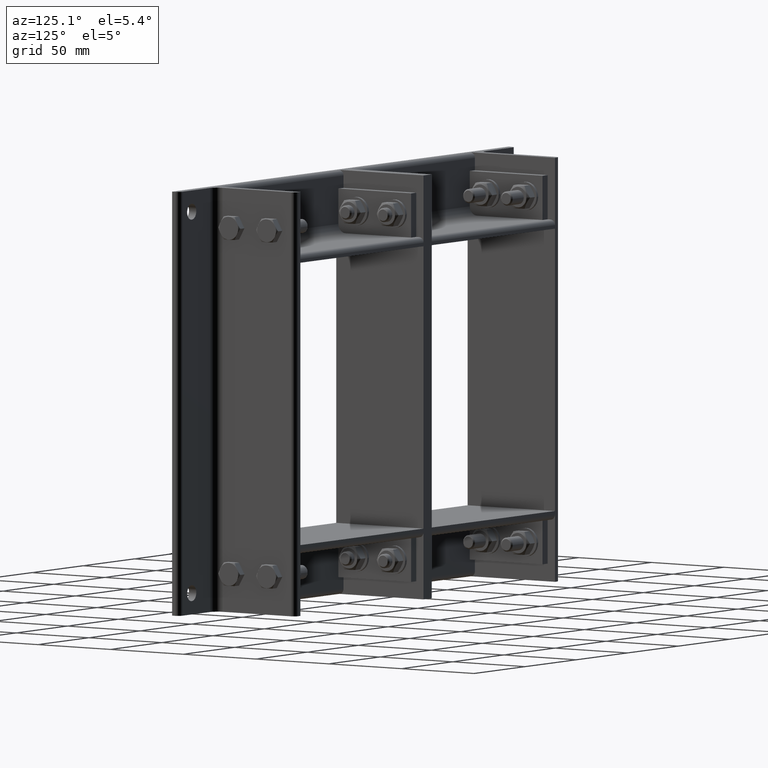
[diagram: clean part render]
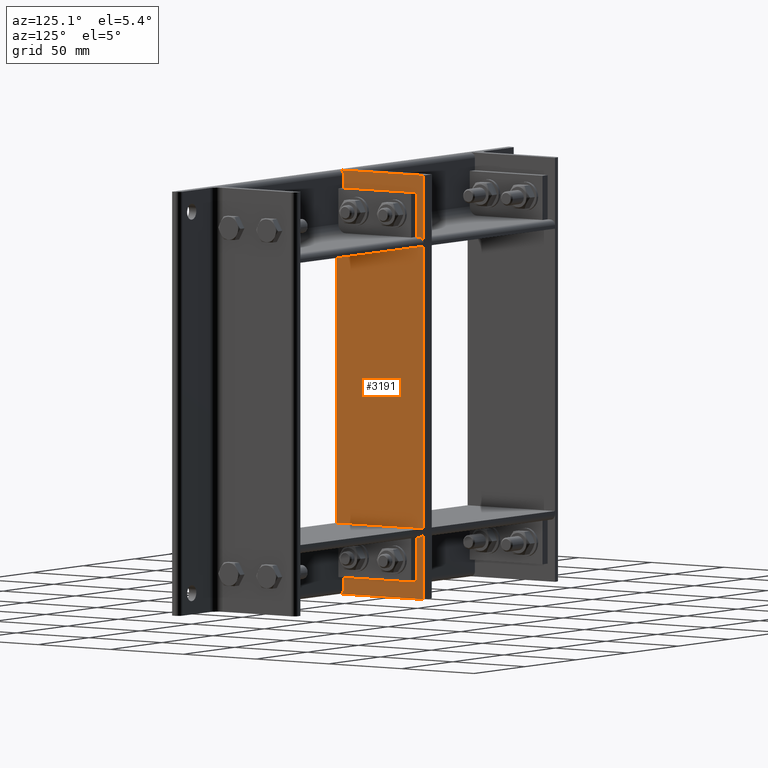
[diagram: same view with one face highlighted and labeled with its STEP entity id]
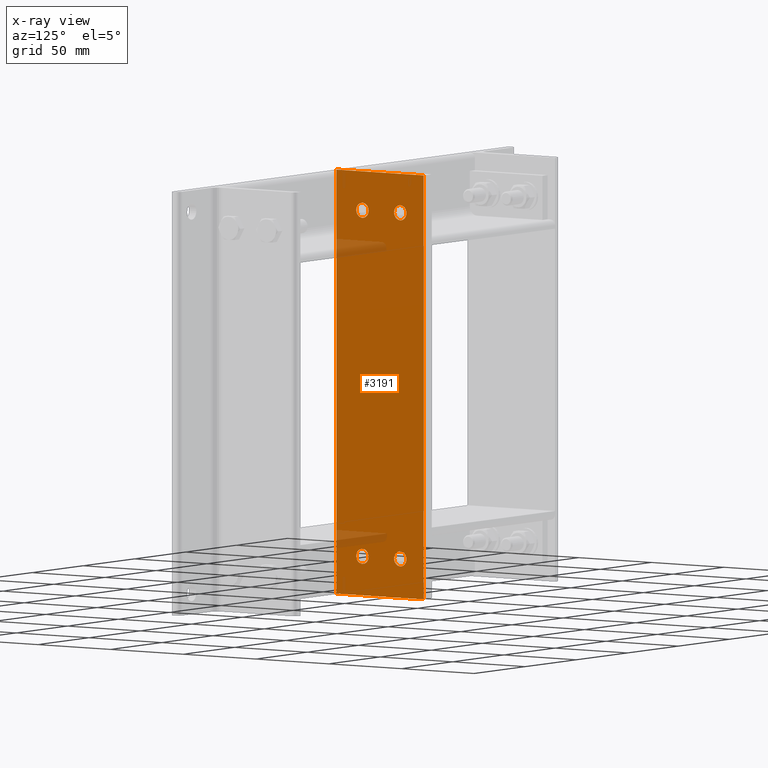
[diagram: x-ray of the same camera — body ghosted, the highlighted face saturated]
A machine part, auxiliary view. The second image highlights one B-rep face of the part: STEP entity #3191.
The next image is the same camera in x-ray: the body ghosted, the highlighted face saturated — about 4% of this face is hidden behind the body in this view.
In plain terms, the highlighted planar face has unit normal (1, 0, 0).
Its self-contained STEP definition (entity closure, byte-faithful):
#3033=CARTESIAN_POINT('',(-4.829470E-015,39.75,217.50000000000003));
#3034=VERTEX_POINT('',#3033);
#3035=CARTESIAN_POINT('',(0.0,43.999999999999993,217.50000000000003));
#3036=DIRECTION('',(1.0,0.0,0.0));
#3037=DIRECTION('',(0.0,1.0,0.0));
#3038=AXIS2_PLACEMENT_3D('',#3035,#3036,#3037);
#3039=CIRCLE('',#3038,4.25);
#3040=EDGE_CURVE('',#3034,#3034,#3039,.T.);
#3061=CARTESIAN_POINT('',(-4.829470E-015,39.75,22.0));
#3062=VERTEX_POINT('',#3061);
#3063=CARTESIAN_POINT('',(0.0,43.999999999999993,22.0));
#3064=DIRECTION('',(1.0,0.0,0.0));
#3065=DIRECTION('',(0.0,1.0,0.0));
#3066=AXIS2_PLACEMENT_3D('',#3063,#3064,#3065);
#3067=CIRCLE('',#3066,4.25);
#3068=EDGE_CURVE('',#3062,#3062,#3067,.T.);
#3089=CARTESIAN_POINT('',(9.436896E-016,13.749999999999996,217.50000000000003));
#3090=VERTEX_POINT('',#3089);
#3091=CARTESIAN_POINT('',(0.0,17.999999999999996,217.50000000000003));
#3092=DIRECTION('',(1.0,0.0,0.0));
#3093=DIRECTION('',(0.0,1.0,0.0));
#3094=AXIS2_PLACEMENT_3D('',#3091,#3092,#3093);
#3095=CIRCLE('',#3094,4.25);
#3096=EDGE_CURVE('',#3090,#3090,#3095,.T.);
#3117=CARTESIAN_POINT('',(9.436896E-016,13.749999999999996,22.0));
#3118=VERTEX_POINT('',#3117);
#3119=CARTESIAN_POINT('',(0.0,17.999999999999996,22.0));
#3120=DIRECTION('',(1.0,0.0,0.0));
#3121=DIRECTION('',(0.0,1.0,0.0));
#3122=AXIS2_PLACEMENT_3D('',#3119,#3120,#3121);
#3123=CIRCLE('',#3122,4.25);
#3124=EDGE_CURVE('',#3118,#3118,#3123,.T.);
#3140=CARTESIAN_POINT('',(0.0,0.0,0.0));
#3141=DIRECTION('',(-1.0,0.0,0.0));
#3142=DIRECTION('',(0.0,0.0,1.0));
#3143=AXIS2_PLACEMENT_3D('',#3140,#3141,#3142);
#3144=PLANE('',#3143);
#3145=CARTESIAN_POINT('',(0.0,0.0,239.50000000000003));
#3146=VERTEX_POINT('',#3145);
#3147=CARTESIAN_POINT('',(-1.776357E-014,60.0,239.50000000000003));
#3148=VERTEX_POINT('',#3147);
#3149=CARTESIAN_POINT('',(0.0,0.0,239.50000000000003));
#3150=DIRECTION('',(0.0,1.0,0.0));
#3151=VECTOR('',#3150,60.0);
#3152=LINE('',#3149,#3151);
#3153=EDGE_CURVE('',#3146,#3148,#3152,.T.);
#3154=ORIENTED_EDGE('',*,*,#3153,.T.);
#3155=CARTESIAN_POINT('',(-1.776357E-014,60.0,0.0));
#3156=VERTEX_POINT('',#3155);
#3157=CARTESIAN_POINT('',(-1.776357E-014,60.0,0.0));
#3158=DIRECTION('',(0.0,0.0,1.0));
#3159=VECTOR('',#3158,239.50000000000003);
#3160=LINE('',#3157,#3159);
#3161=EDGE_CURVE('',#3156,#3148,#3160,.T.);
#3162=ORIENTED_EDGE('',*,*,#3161,.F.);
#3163=CARTESIAN_POINT('',(0.0,0.0,0.0));
#3164=VERTEX_POINT('',#3163);
#3165=CARTESIAN_POINT('',(-1.776357E-014,60.0,0.0));
#3166=DIRECTION('',(0.0,-1.0,0.0));
#3167=VECTOR('',#3166,60.0);
#3168=LINE('',#3165,#3167);
#3169=EDGE_CURVE('',#3156,#3164,#3168,.T.);
#3170=ORIENTED_EDGE('',*,*,#3169,.T.);
#3171=CARTESIAN_POINT('',(0.0,0.0,0.0));
#3172=DIRECTION('',(0.0,0.0,1.0));
#3173=VECTOR('',#3172,239.50000000000003);
#3174=LINE('',#3171,#3173);
#3175=EDGE_CURVE('',#3164,#3146,#3174,.T.);
#3176=ORIENTED_EDGE('',*,*,#3175,.T.);
#3177=EDGE_LOOP('',(#3154,#3162,#3170,#3176));
#3178=FACE_OUTER_BOUND('',#3177,.T.);
#3179=ORIENTED_EDGE('',*,*,#3040,.T.);
#3180=EDGE_LOOP('',(#3179));
#3181=FACE_BOUND('',#3180,.T.);
#3182=ORIENTED_EDGE('',*,*,#3068,.T.);
#3183=EDGE_LOOP('',(#3182));
#3184=FACE_BOUND('',#3183,.T.);
#3185=ORIENTED_EDGE('',*,*,#3096,.T.);
#3186=EDGE_LOOP('',(#3185));
#3187=FACE_BOUND('',#3186,.T.);
#3188=ORIENTED_EDGE('',*,*,#3124,.T.);
#3189=EDGE_LOOP('',(#3188));
#3190=FACE_BOUND('',#3189,.T.);
#3191=ADVANCED_FACE('',(#3178,#3181,#3184,#3187,#3190),#3144,.T.);